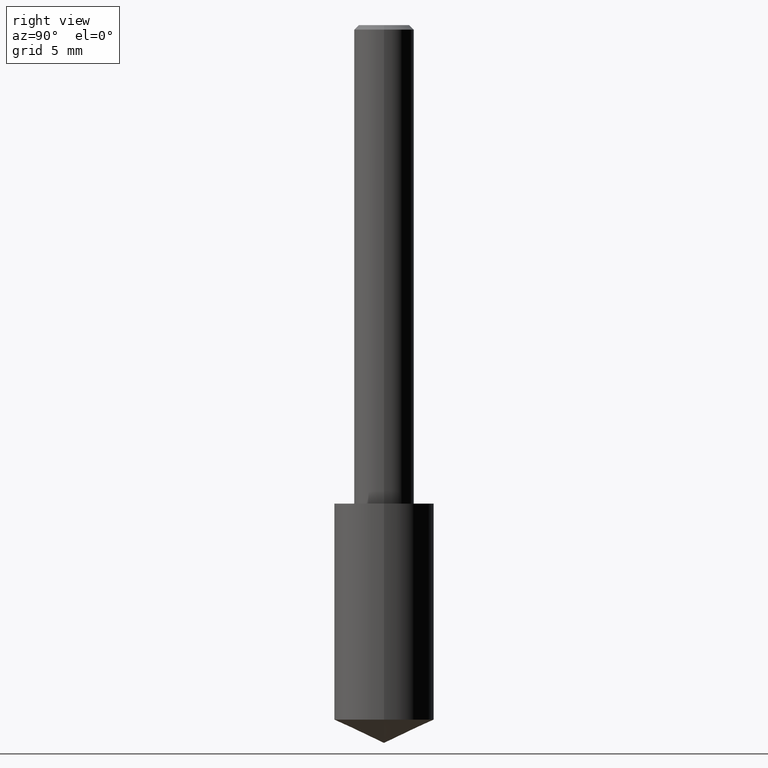
[diagram: clean part render]
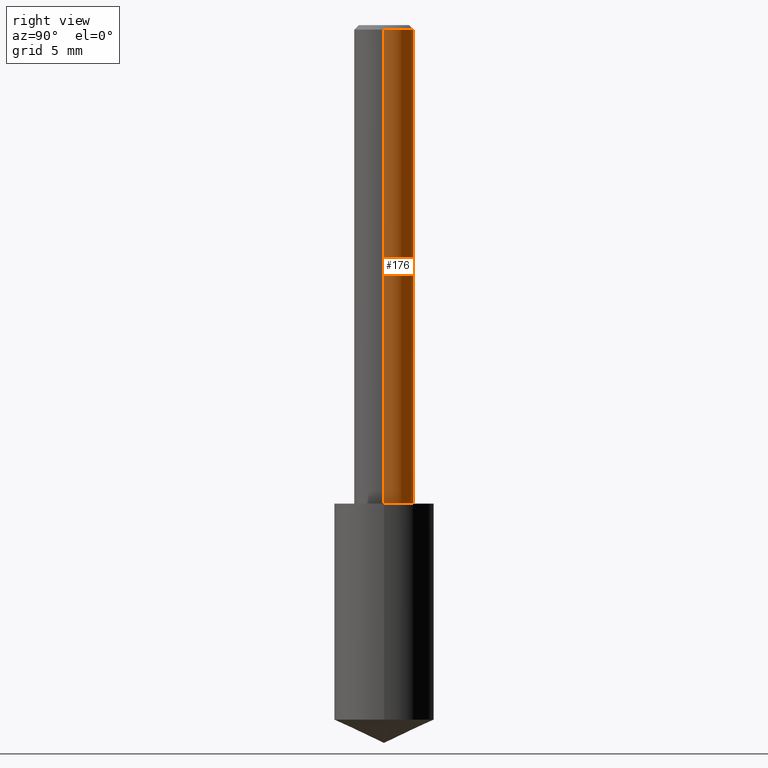
[diagram: same view with one face highlighted and labeled with its STEP entity id]
A machine part, right view. The second image highlights one B-rep face of the part: STEP entity #176.
In plain terms, the highlighted cylindrical surface (edge-blend (fillet) strip) has radius 1.5875 mm, axis along (-0, 0, 1).
Its self-contained STEP definition (entity closure, byte-faithful):
#2 = VECTOR ( 'NONE', #150, 39.37007874015748143 ) ;
#3 = EDGE_CURVE ( 'NONE', #208, #91, #68, .T. ) ;
#4 = DIRECTION ( 'NONE',  ( -2.445468806185136597E-29, 3.491481338843145583E-15, 1.000000000000000000 ) ) ;
#13 = ORIENTED_EDGE ( 'NONE', *, *, #123, .T. ) ;
#36 = CIRCLE ( 'NONE', #185, 0.06250000000000012490 ) ;
#41 = ORIENTED_EDGE ( 'NONE', *, *, #67, .T. ) ;
#62 = AXIS2_PLACEMENT_3D ( 'NONE', #152, #205, #334 ) ;
#67 = EDGE_CURVE ( 'NONE', #248, #91, #277, .T. ) ;
#68 = CIRCLE ( 'NONE', #62, 0.06250000000000000000 ) ;
#72 = CARTESIAN_POINT ( 'NONE',  ( -0.06250000000000006939, 4.440892098500631092E-16, -3.074334431409319267E-30 ) ) ;
#82 = CARTESIAN_POINT ( 'NONE',  ( 0.06250000000000000000, -4.691678049070464390E-16, -0.009375000000000063838 ) ) ;
#91 = VERTEX_POINT ( 'NONE', #125 ) ;
#103 = DIRECTION ( 'NONE',  ( 1.000000000000000000, -6.982962677686264344E-15, 0.000000000000000000 ) ) ;
#104 = EDGE_CURVE ( 'NONE', #222, #208, #337, .T. ) ;
#111 = VECTOR ( 'NONE', #305, 39.37007874015748143 ) ;
#115 = DIRECTION ( 'NONE',  ( 1.000000000000000000, -6.982962677686266711E-15, 4.876176775795935793E-29 ) ) ;
#123 = EDGE_CURVE ( 'NONE', #222, #248, #36, .T. ) ;
#125 = CARTESIAN_POINT ( 'NONE',  ( -0.06250000000000000000, -1.318017778347336672E-15, -0.009375000000000063838 ) ) ;
#150 = DIRECTION ( 'NONE',  ( -2.445468806185136877E-29, 3.491481338843145188E-15, 1.000000000000000000 ) ) ;
#152 = CARTESIAN_POINT ( 'NONE',  ( 2.292627005798581499E-31, -3.273263755165471417E-17, -0.009375000000000063838 ) ) ;
#161 = AXIS2_PLACEMENT_3D ( 'NONE', #321, #4, #115 ) ;
#162 = CYLINDRICAL_SURFACE ( 'NONE', #161, 0.06250000000000006939 ) ;
#176 = ADVANCED_FACE ( 'NONE', ( #291 ), #162, .T. ) ;
#177 = DIRECTION ( 'NONE',  ( -2.445468806185136597E-29, 3.491481338843145583E-15, 1.000000000000000000 ) ) ;
#185 = AXIS2_PLACEMENT_3D ( 'NONE', #308, #177, #103 ) ;
#205 = DIRECTION ( 'NONE',  ( -2.445468806185136597E-29, 3.491481338843145583E-15, 1.000000000000000000 ) ) ;
#208 = VERTEX_POINT ( 'NONE', #82 ) ;
#212 = CARTESIAN_POINT ( 'NONE',  ( -0.06250000000000012490, -1.318017778347335489E-15, -1.000000000000000222 ) ) ;
#217 = ORIENTED_EDGE ( 'NONE', *, *, #104, .F. ) ;
#222 = VERTEX_POINT ( 'NONE', #234 ) ;
#234 = CARTESIAN_POINT ( 'NONE',  ( 0.06250000000000012490, -3.927916506198539224E-15, -1.000000000000000222 ) ) ;
#248 = VERTEX_POINT ( 'NONE', #212 ) ;
#277 = LINE ( 'NONE', #72, #111 ) ;
#291 = FACE_OUTER_BOUND ( 'NONE', #332, .T. ) ;
#298 = ORIENTED_EDGE ( 'NONE', *, *, #3, .F. ) ;
#305 = DIRECTION ( 'NONE',  ( -2.445468806185136877E-29, 3.491481338843145188E-15, 1.000000000000000000 ) ) ;
#308 = CARTESIAN_POINT ( 'NONE',  ( 2.445468806185137438E-29, -3.491481338843146371E-15, -1.000000000000000222 ) ) ;
#312 = CARTESIAN_POINT ( 'NONE',  ( 0.06250000000000006939, -4.364351673553921624E-16, 3.047610484872463374E-30 ) ) ;
#321 = CARTESIAN_POINT ( 'NONE',  ( 0.000000000000000000, 0.000000000000000000, 0.000000000000000000 ) ) ;
#332 = EDGE_LOOP ( 'NONE', ( #13, #41, #298, #217 ) ) ;
#334 = DIRECTION ( 'NONE',  ( 1.000000000000000000, -6.982962677686266711E-15, 0.000000000000000000 ) ) ;
#337 = LINE ( 'NONE', #312, #2 ) ;